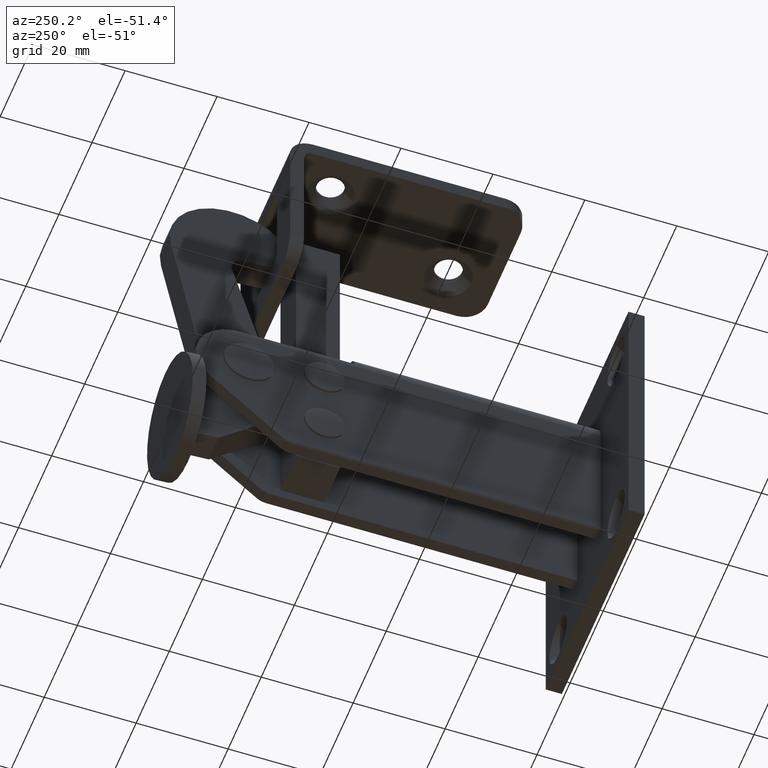
[diagram: clean part render]
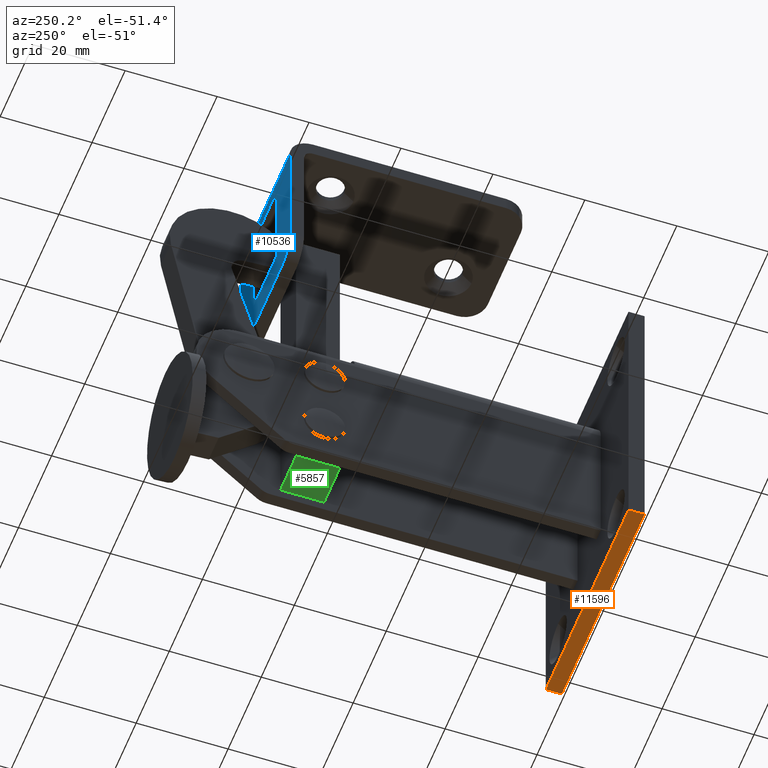
[diagram: same view with three faces highlighted in distinct colors, each labeled with its STEP entity id]
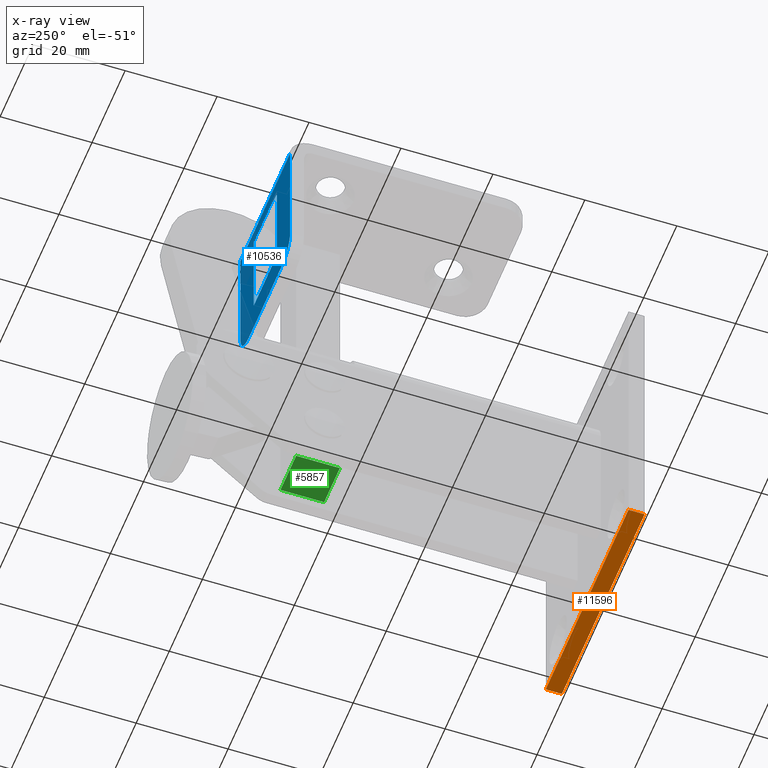
[diagram: x-ray of the same camera — body ghosted, the three highlighted faces saturated]
A machine part, auxiliary view with three faces highlighted in distinct colors.
The next image is the same camera in x-ray (body ghosted, the three faces saturated) — at least one of them is partly hidden behind the body in this view.
Their STEP definitions:

[orange] entity #11596 — the highlighted planar face has unit normal (0, 0, 1).
#41 = VERTEX_POINT ( 'NONE', #1693 ) ;
#46 = VECTOR ( 'NONE', #11414, 1000.000000000000000 ) ;
#177 = CARTESIAN_POINT ( 'NONE',  ( -24.99999999999999600, 0.0000000000000000000, -32.50000000000000000 ) ) ;
#188 = FACE_OUTER_BOUND ( 'NONE', #972, .T. ) ;
#477 = AXIS2_PLACEMENT_3D ( 'NONE', #5034, #10202, #13137 ) ;
#627 = VERTEX_POINT ( 'NONE', #9442 ) ;
#733 = EDGE_CURVE ( 'NONE', #4001, #41, #2698, .T. ) ;
#972 = EDGE_LOOP ( 'NONE', ( #10252, #8905, #2184, #1264 ) ) ;
#1264 = ORIENTED_EDGE ( 'NONE', *, *, #733, .T. ) ;
#1483 = VECTOR ( 'NONE', #11417, 1000.000000000000000 ) ;
#1693 = CARTESIAN_POINT ( 'NONE',  ( 25.00000000000000400, 0.0000000000000000000, -32.50000000000000000 ) ) ;
#2184 = ORIENTED_EDGE ( 'NONE', *, *, #12756, .F. ) ;
#2549 = DIRECTION ( 'NONE',  ( -0.0000000000000000000, -1.000000000000000000, -0.0000000000000000000 ) ) ;
#2690 = CARTESIAN_POINT ( 'NONE',  ( 25.00000000000000400, 3.500000000000000000, -32.50000000000000000 ) ) ;
#2698 = LINE ( 'NONE', #10693, #10178 ) ;
#3539 = CARTESIAN_POINT ( 'NONE',  ( -24.99999999999999600, 3.500000000000000000, -32.50000000000000000 ) ) ;
#3554 = LINE ( 'NONE', #5399, #1483 ) ;
#4001 = VERTEX_POINT ( 'NONE', #2690 ) ;
#4134 = VECTOR ( 'NONE', #2549, 1000.000000000000000 ) ;
#4763 = LINE ( 'NONE', #3539, #4134 ) ;
#5034 = CARTESIAN_POINT ( 'NONE',  ( -24.99999999999999600, 3.500000000000000000, -32.50000000000000000 ) ) ;
#5358 = CARTESIAN_POINT ( 'NONE',  ( -24.99999999999999600, 0.0000000000000000000, -32.50000000000000000 ) ) ;
#5399 = CARTESIAN_POINT ( 'NONE',  ( -24.99999999999999600, 3.500000000000000000, -32.50000000000000000 ) ) ;
#5787 = DIRECTION ( 'NONE',  ( -0.0000000000000000000, -1.000000000000000000, -0.0000000000000000000 ) ) ;
#6221 = LINE ( 'NONE', #177, #46 ) ;
#7058 = EDGE_CURVE ( 'NONE', #627, #8110, #4763, .T. ) ;
#8110 = VERTEX_POINT ( 'NONE', #5358 ) ;
#8905 = ORIENTED_EDGE ( 'NONE', *, *, #7058, .F. ) ;
#9442 = CARTESIAN_POINT ( 'NONE',  ( -24.99999999999999600, 3.500000000000000000, -32.50000000000000000 ) ) ;
#10178 = VECTOR ( 'NONE', #5787, 1000.000000000000000 ) ;
#10202 = DIRECTION ( 'NONE',  ( 0.0000000000000000000, 0.0000000000000000000, 1.000000000000000000 ) ) ;
#10252 = ORIENTED_EDGE ( 'NONE', *, *, #11265, .T. ) ;
#10693 = CARTESIAN_POINT ( 'NONE',  ( 25.00000000000000400, 3.500000000000000000, -32.50000000000000000 ) ) ;
#11265 = EDGE_CURVE ( 'NONE', #41, #8110, #6221, .T. ) ;
#11414 = DIRECTION ( 'NONE',  ( -1.000000000000000000, -0.0000000000000000000, -0.0000000000000000000 ) ) ;
#11417 = DIRECTION ( 'NONE',  ( -1.000000000000000000, -0.0000000000000000000, -0.0000000000000000000 ) ) ;
#11596 = ADVANCED_FACE ( 'NONE', ( #188 ), #12167, .F. ) ;
#12167 = PLANE ( 'NONE',  #477 ) ;
#12756 = EDGE_CURVE ( 'NONE', #4001, #627, #3554, .T. ) ;
#13137 = DIRECTION ( 'NONE',  ( 1.000000000000000000, 0.0000000000000000000, -0.0000000000000000000 ) ) ;

[blue] entity #10536 — the highlighted planar face has unit normal (0, -1, 0).
#7 = CARTESIAN_POINT ( 'NONE',  ( 6.999999999999997300, 52.00000000000000700, -11.00000000000000400 ) ) ;
#228 = VERTEX_POINT ( 'NONE', #12800 ) ;
#299 = EDGE_LOOP ( 'NONE', ( #8607, #11289, #6995, #637 ) ) ;
#485 = VERTEX_POINT ( 'NONE', #6087 ) ;
#637 = ORIENTED_EDGE ( 'NONE', *, *, #9551, .F. ) ;
#658 = EDGE_CURVE ( 'NONE', #228, #6590, #6340, .T. ) ;
#685 = DIRECTION ( 'NONE',  ( -2.065146995210484900E-016, -0.0000000000000000000, -1.000000000000000000 ) ) ;
#869 = DIRECTION ( 'NONE',  ( -0.0000000000000000000, 1.000000000000000000, -0.0000000000000000000 ) ) ;
#879 = ORIENTED_EDGE ( 'NONE', *, *, #9739, .T. ) ;
#1050 = CARTESIAN_POINT ( 'NONE',  ( 15.00000000000000000, 52.00000000000000700, -18.00000000000000400 ) ) ;
#1083 = VECTOR ( 'NONE', #4550, 1000.000000000000000 ) ;
#1094 = CARTESIAN_POINT ( 'NONE',  ( 15.00000000000000000, 52.00000000000000700, 12.99999999999999500 ) ) ;
#1406 = ORIENTED_EDGE ( 'NONE', *, *, #11776, .T. ) ;
#1438 = AXIS2_PLACEMENT_3D ( 'NONE', #8932, #7047, #2853 ) ;
#1824 = PLANE ( 'NONE',  #1438 ) ;
#1883 = CARTESIAN_POINT ( 'NONE',  ( 7.000000000000000900, 52.00000000000000700, 9.999999999999998200 ) ) ;
#2079 = CIRCLE ( 'NONE', #12249, 5.000000000000000900 ) ;
#2151 = CARTESIAN_POINT ( 'NONE',  ( -15.00000000000000000, 52.00000000000000700, -18.00000000000000400 ) ) ;
#2158 = ORIENTED_EDGE ( 'NONE', *, *, #2724, .F. ) ;
#2363 = VERTEX_POINT ( 'NONE', #7 ) ;
#2681 = VERTEX_POINT ( 'NONE', #5270 ) ;
#2724 = EDGE_CURVE ( 'NONE', #13210, #485, #6857, .T. ) ;
#2853 = DIRECTION ( 'NONE',  ( 0.0000000000000000000, -0.0000000000000000000, -1.000000000000000000 ) ) ;
#2925 = DIRECTION ( 'NONE',  ( -1.000000000000000000, -0.0000000000000000000, -0.0000000000000000000 ) ) ;
#2926 = VECTOR ( 'NONE', #12440, 1000.000000000000000 ) ;
#3150 = VERTEX_POINT ( 'NONE', #1883 ) ;
#3323 = EDGE_LOOP ( 'NONE', ( #7925, #8540, #7734, #879, #1406, #2158 ) ) ;
#3522 = EDGE_CURVE ( 'NONE', #2363, #9175, #12711, .T. ) ;
#4085 = DIRECTION ( 'NONE',  ( 0.0000000000000000000, 0.0000000000000000000, -1.000000000000000000 ) ) ;
#4550 = DIRECTION ( 'NONE',  ( 0.0000000000000000000, 0.0000000000000000000, 1.000000000000000000 ) ) ;
#4612 = VECTOR ( 'NONE', #13080, 1000.000000000000000 ) ;
#4966 = VECTOR ( 'NONE', #7360, 1000.000000000000000 ) ;
#5270 = CARTESIAN_POINT ( 'NONE',  ( -15.00000000000000000, 52.00000000000000700, -13.00000000000000200 ) ) ;
#6087 = CARTESIAN_POINT ( 'NONE',  ( -15.00000000000000000, 52.00000000000000700, 12.99999999999999500 ) ) ;
#6340 = CIRCLE ( 'NONE', #13098, 5.000000000000000900 ) ;
#6545 = CARTESIAN_POINT ( 'NONE',  ( 9.999999999999998200, 52.00000000000000700, -18.00000000000000400 ) ) ;
#6590 = VERTEX_POINT ( 'NONE', #6545 ) ;
#6705 = EDGE_CURVE ( 'NONE', #3150, #2363, #9042, .T. ) ;
#6765 = VECTOR ( 'NONE', #2925, 1000.000000000000000 ) ;
#6857 = LINE ( 'NONE', #12316, #4966 ) ;
#6995 = ORIENTED_EDGE ( 'NONE', *, *, #7322, .F. ) ;
#7047 = DIRECTION ( 'NONE',  ( 0.0000000000000000000, -1.000000000000000000, 0.0000000000000000000 ) ) ;
#7322 = EDGE_CURVE ( 'NONE', #12088, #3150, #7447, .T. ) ;
#7360 = DIRECTION ( 'NONE',  ( -1.000000000000000000, -0.0000000000000000000, -0.0000000000000000000 ) ) ;
#7427 = FACE_OUTER_BOUND ( 'NONE', #3323, .T. ) ;
#7447 = LINE ( 'NONE', #8118, #12555 ) ;
#7523 = EDGE_CURVE ( 'NONE', #228, #13210, #12233, .T. ) ;
#7627 = CARTESIAN_POINT ( 'NONE',  ( 15.00000000000000000, 52.00000000000000700, -18.00000000000000400 ) ) ;
#7669 = CARTESIAN_POINT ( 'NONE',  ( -7.000000000000003600, 52.00000000000000700, -11.00000000000000400 ) ) ;
#7730 = CARTESIAN_POINT ( 'NONE',  ( -7.000000000000000900, 52.00000000000000700, 9.999999999999998200 ) ) ;
#7734 = ORIENTED_EDGE ( 'NONE', *, *, #11002, .T. ) ;
#7879 = LINE ( 'NONE', #1050, #6765 ) ;
#7925 = ORIENTED_EDGE ( 'NONE', *, *, #7523, .F. ) ;
#7958 = CARTESIAN_POINT ( 'NONE',  ( 6.999999999999996400, 52.00000000000000700, -11.00000000000000400 ) ) ;
#8118 = CARTESIAN_POINT ( 'NONE',  ( -7.000000000000000900, 52.00000000000000700, 9.999999999999998200 ) ) ;
#8152 = LINE ( 'NONE', #2151, #2926 ) ;
#8372 = CARTESIAN_POINT ( 'NONE',  ( 9.999999999999998200, 52.00000000000000700, -13.00000000000000200 ) ) ;
#8472 = DIRECTION ( 'NONE',  ( -0.0000000000000000000, 1.000000000000000000, -0.0000000000000000000 ) ) ;
#8540 = ORIENTED_EDGE ( 'NONE', *, *, #658, .T. ) ;
#8607 = ORIENTED_EDGE ( 'NONE', *, *, #3522, .F. ) ;
#8693 = DIRECTION ( 'NONE',  ( 1.239088197126290800E-016, 0.0000000000000000000, 1.000000000000000000 ) ) ;
#8932 = CARTESIAN_POINT ( 'NONE',  ( 15.00000000000000000, 52.00000000000000700, -18.00000000000000400 ) ) ;
#9042 = LINE ( 'NONE', #7958, #9529 ) ;
#9175 = VERTEX_POINT ( 'NONE', #9199 ) ;
#9199 = CARTESIAN_POINT ( 'NONE',  ( -7.000000000000003600, 52.00000000000000700, -11.00000000000000400 ) ) ;
#9529 = VECTOR ( 'NONE', #685, 1000.000000000000000 ) ;
#9551 = EDGE_CURVE ( 'NONE', #9175, #12088, #13057, .T. ) ;
#9739 = EDGE_CURVE ( 'NONE', #9969, #2681, #2079, .T. ) ;
#9969 = VERTEX_POINT ( 'NONE', #12828 ) ;
#10536 = ADVANCED_FACE ( 'NONE', ( #11569, #7427 ), #1824, .F. ) ;
#11002 = EDGE_CURVE ( 'NONE', #6590, #9969, #7879, .T. ) ;
#11151 = CARTESIAN_POINT ( 'NONE',  ( -7.000000000000003600, 52.00000000000000700, -11.00000000000000400 ) ) ;
#11154 = DIRECTION ( 'NONE',  ( 1.000000000000000000, 0.0000000000000000000, 0.0000000000000000000 ) ) ;
#11289 = ORIENTED_EDGE ( 'NONE', *, *, #6705, .F. ) ;
#11449 = DIRECTION ( 'NONE',  ( 0.0000000000000000000, 0.0000000000000000000, -1.000000000000000000 ) ) ;
#11569 = FACE_BOUND ( 'NONE', #299, .T. ) ;
#11776 = EDGE_CURVE ( 'NONE', #2681, #485, #8152, .T. ) ;
#12088 = VERTEX_POINT ( 'NONE', #7730 ) ;
#12233 = LINE ( 'NONE', #7627, #1083 ) ;
#12249 = AXIS2_PLACEMENT_3D ( 'NONE', #13146, #869, #4085 ) ;
#12316 = CARTESIAN_POINT ( 'NONE',  ( 15.00000000000000000, 52.00000000000000700, 12.99999999999999500 ) ) ;
#12440 = DIRECTION ( 'NONE',  ( 0.0000000000000000000, 0.0000000000000000000, 1.000000000000000000 ) ) ;
#12555 = VECTOR ( 'NONE', #11154, 1000.000000000000000 ) ;
#12711 = LINE ( 'NONE', #11151, #4612 ) ;
#12800 = CARTESIAN_POINT ( 'NONE',  ( 15.00000000000000000, 52.00000000000000700, -13.00000000000000200 ) ) ;
#12828 = CARTESIAN_POINT ( 'NONE',  ( -9.999999999999998200, 52.00000000000000700, -18.00000000000000400 ) ) ;
#13057 = LINE ( 'NONE', #7669, #13222 ) ;
#13080 = DIRECTION ( 'NONE',  ( -1.000000000000000000, -0.0000000000000000000, -0.0000000000000000000 ) ) ;
#13098 = AXIS2_PLACEMENT_3D ( 'NONE', #8372, #8472, #11449 ) ;
#13146 = CARTESIAN_POINT ( 'NONE',  ( -9.999999999999998200, 52.00000000000000700, -13.00000000000000200 ) ) ;
#13210 = VERTEX_POINT ( 'NONE', #1094 ) ;
#13222 = VECTOR ( 'NONE', #8693, 1000.000000000000000 ) ;

[green] entity #5857 — the highlighted planar face has unit normal (0, 0, 1).
#877 = CARTESIAN_POINT ( 'NONE',  ( -4.750000000000001800, 4.750000000000000900, -35.00000000000000000 ) ) ;
#1121 = EDGE_CURVE ( 'NONE', #13227, #10054, #12850, .T. ) ;
#1419 = DIRECTION ( 'NONE',  ( 1.826024711554534200E-016, -1.000000000000000000, 0.0000000000000000000 ) ) ;
#1461 = DIRECTION ( 'NONE',  ( -0.0000000000000000000, 0.0000000000000000000, 1.000000000000000000 ) ) ;
#1475 = CARTESIAN_POINT ( 'NONE',  ( -4.750000000000001800, 4.750000000000000900, -35.00000000000000000 ) ) ;
#1899 = DIRECTION ( 'NONE',  ( -1.000000000000000000, -0.0000000000000000000, -0.0000000000000000000 ) ) ;
#2161 = VECTOR ( 'NONE', #1899, 1000.000000000000000 ) ;
#2479 = ORIENTED_EDGE ( 'NONE', *, *, #1121, .F. ) ;
#2872 = ORIENTED_EDGE ( 'NONE', *, *, #10986, .F. ) ;
#2888 = CARTESIAN_POINT ( 'NONE',  ( -4.750000000000001800, 4.750000000000000900, -35.00000000000000000 ) ) ;
#3301 = LINE ( 'NONE', #2888, #2161 ) ;
#3528 = DIRECTION ( 'NONE',  ( -9.130123557772670800E-017, 1.000000000000000000, -0.0000000000000000000 ) ) ;
#3534 = LINE ( 'NONE', #6597, #9904 ) ;
#4502 = CARTESIAN_POINT ( 'NONE',  ( 0.0000000000000000000, 0.0000000000000000000, -35.00000000000000000 ) ) ;
#4933 = ORIENTED_EDGE ( 'NONE', *, *, #9289, .F. ) ;
#5446 = PLANE ( 'NONE',  #6064 ) ;
#5857 = ADVANCED_FACE ( 'NONE', ( #7280 ), #5446, .F. ) ;
#6064 = AXIS2_PLACEMENT_3D ( 'NONE', #4502, #1461, #9994 ) ;
#6470 = EDGE_CURVE ( 'NONE', #12441, #13227, #6968, .T. ) ;
#6597 = CARTESIAN_POINT ( 'NONE',  ( 4.749999999999998200, 4.750000000000000900, -35.00000000000000000 ) ) ;
#6968 = LINE ( 'NONE', #877, #9052 ) ;
#7280 = FACE_OUTER_BOUND ( 'NONE', #10435, .T. ) ;
#8031 = VECTOR ( 'NONE', #8584, 1000.000000000000000 ) ;
#8329 = CARTESIAN_POINT ( 'NONE',  ( -4.750000000000000000, -4.749999999999998200, -35.00000000000000000 ) ) ;
#8584 = DIRECTION ( 'NONE',  ( 1.000000000000000000, 0.0000000000000000000, 0.0000000000000000000 ) ) ;
#8749 = CARTESIAN_POINT ( 'NONE',  ( -4.750000000000000000, -4.749999999999998200, -35.00000000000000000 ) ) ;
#9052 = VECTOR ( 'NONE', #1419, 1000.000000000000000 ) ;
#9289 = EDGE_CURVE ( 'NONE', #10054, #11032, #3534, .T. ) ;
#9904 = VECTOR ( 'NONE', #3528, 1000.000000000000000 ) ;
#9994 = DIRECTION ( 'NONE',  ( 1.000000000000000000, 0.0000000000000000000, 0.0000000000000000000 ) ) ;
#10054 = VERTEX_POINT ( 'NONE', #11030 ) ;
#10088 = CARTESIAN_POINT ( 'NONE',  ( 4.749999999999998200, 4.750000000000000900, -35.00000000000000000 ) ) ;
#10435 = EDGE_LOOP ( 'NONE', ( #4933, #2479, #11094, #2872 ) ) ;
#10986 = EDGE_CURVE ( 'NONE', #11032, #12441, #3301, .T. ) ;
#11030 = CARTESIAN_POINT ( 'NONE',  ( 4.749999999999999100, -4.749999999999998200, -35.00000000000000000 ) ) ;
#11032 = VERTEX_POINT ( 'NONE', #10088 ) ;
#11094 = ORIENTED_EDGE ( 'NONE', *, *, #6470, .F. ) ;
#12441 = VERTEX_POINT ( 'NONE', #1475 ) ;
#12850 = LINE ( 'NONE', #8749, #8031 ) ;
#13227 = VERTEX_POINT ( 'NONE', #8329 ) ;